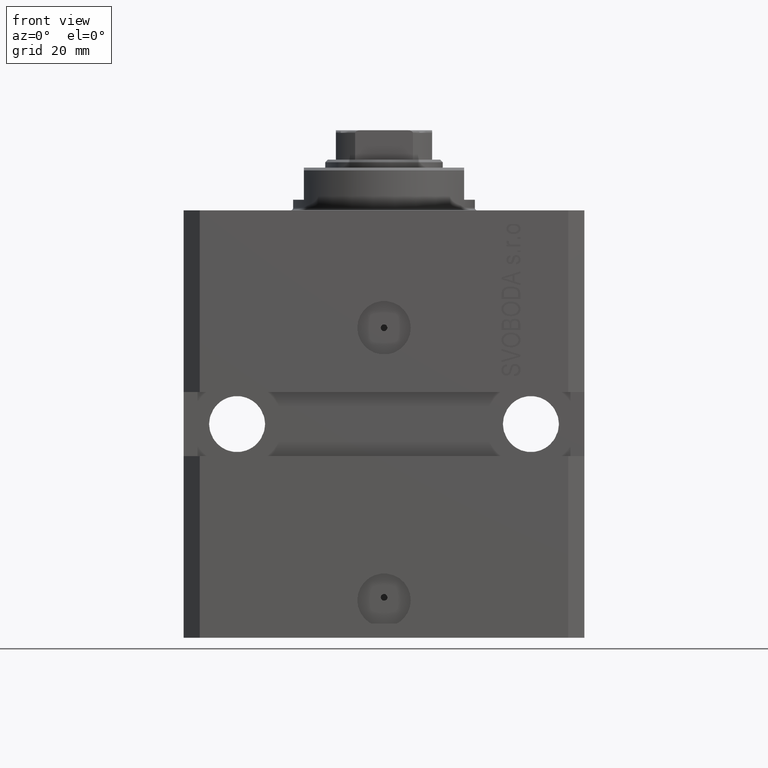
[diagram: clean part render]
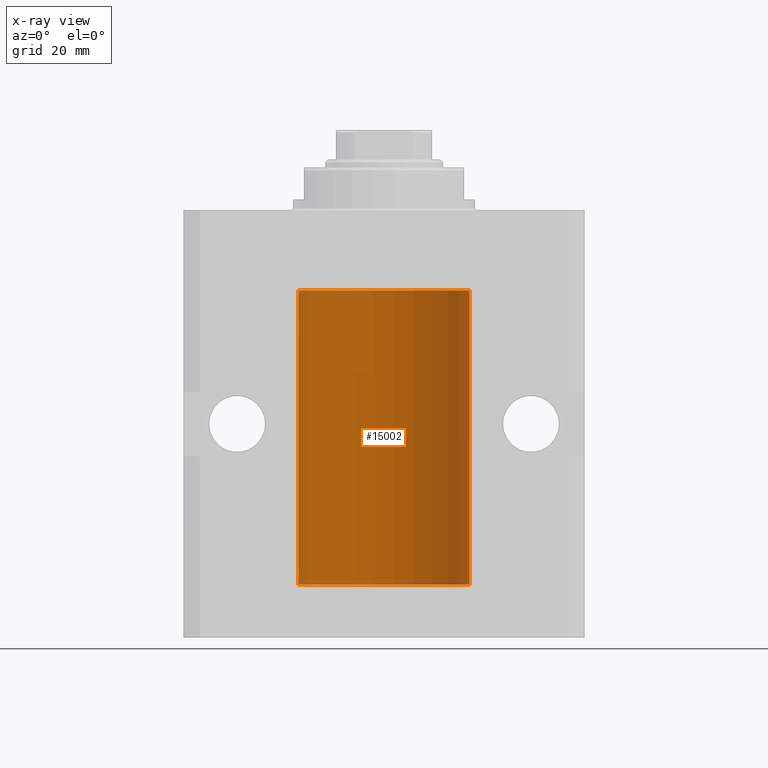
[diagram: x-ray — body ghosted, one internal face saturated and labeled with its STEP entity id]
A machine part, front view, then the same camera in x-ray: the body is ghosted and one INTERNAL B-rep face — a face not visible from any outside direction — is saturated and labeled: STEP entity #15002.
In plain terms, the highlighted cylindrical surface (partial cylindrical patch) has radius 16 mm, axis along (0, 0, 1).
Its self-contained STEP definition (entity closure, byte-faithful):
#33 = CARTESIAN_POINT ( 'NONE',  ( -15.98844267028591126, 0.6088369347963314970, -68.16324735024328163 ) ) ;
#380 = CARTESIAN_POINT ( 'NONE',  ( -16.00000000000000000, 1.643679961284177128E-16, -21.37499999999999645 ) ) ;
#1211 = DIRECTION ( 'NONE',  ( 1.000000000000000000, 0.000000000000000000, 0.000000000000000000 ) ) ;
#1357 = CARTESIAN_POINT ( 'NONE',  ( -15.98844267028591482, 0.6088369347963316081, -22.16324735024328518 ) ) ;
#1673 = FACE_OUTER_BOUND ( 'NONE', #17284, .T. ) ;
#1801 = ORIENTED_EDGE ( 'NONE', *, *, #45359, .F. ) ;
#1817 = VERTEX_POINT ( 'NONE', #28460 ) ;
#2241 = LINE ( 'NONE', #38004, #26222 ) ;
#2482 = CIRCLE ( 'NONE', #21404, 16.00000000000000000 ) ;
#2745 = DIRECTION ( 'NONE',  ( 1.000000000000000000, 0.000000000000000000, 0.000000000000000000 ) ) ;
#3431 = LINE ( 'NONE', #44142, #37317 ) ;
#3798 = ORIENTED_EDGE ( 'NONE', *, *, #4085, .T. ) ;
#3815 = CARTESIAN_POINT ( 'NONE',  ( -16.00000000000013145, 3.685127046438747128E-13, -68.62500000000343903 ) ) ;
#4085 = EDGE_CURVE ( 'NONE', #37453, #32564, #2482, .T. ) ;
#4166 = VECTOR ( 'NONE', #38690, 1000.000000000000000 ) ;
#4696 = LINE ( 'NONE', #40455, #24825 ) ;
#4910 = CARTESIAN_POINT ( 'NONE',  ( -15.98779057735153941, 0.6249419637998100407, -21.83670145863507273 ) ) ;
#5849 = CARTESIAN_POINT ( 'NONE',  ( -16.00000000000000000, 0.1631714642025800244, -22.62499999999985789 ) ) ;
#6247 = LINE ( 'NONE', #31363, #4166 ) ;
#6674 = CARTESIAN_POINT ( 'NONE',  ( -15.99711699979840951, 0.3253759916140645525, -68.55856151623176231 ) ) ;
#6756 = DIRECTION ( 'NONE',  ( 0.000000000000000000, 0.000000000000000000, 1.000000000000000000 ) ) ;
#7459 = CARTESIAN_POINT ( 'NONE',  ( 0.000000000000000000, 0.000000000000000000, -15.00000000000000000 ) ) ;
#8354 = CARTESIAN_POINT ( 'NONE',  ( -16.00000000000013145, 3.685127034031037939E-13, -22.62500000000341771 ) ) ;
#10217 = CARTESIAN_POINT ( 'NONE',  ( -15.98778717651346426, 0.6250289588122136530, -68.08131585687053189 ) ) ;
#10683 = CARTESIAN_POINT ( 'NONE',  ( -15.99934216141748244, 0.1636497843296345067, -67.39126528029308361 ) ) ;
#11185 = CARTESIAN_POINT ( 'NONE',  ( -16.00000000000013145, 3.685127046438747128E-13, -68.62500000000343903 ) ) ;
#12714 = EDGE_CURVE ( 'NONE', #30243, #37453, #6247, .T. ) ;
#13479 = CARTESIAN_POINT ( 'NONE',  ( -16.00000000000000000, 1.959434878635765131E-15, -15.00000000000000000 ) ) ;
#13856 = EDGE_CURVE ( 'NONE', #30243, #44005, #23101, .T. ) ;
#14002 = CARTESIAN_POINT ( 'NONE',  ( -15.99070653155268040, 0.5573233280232966491, -67.67348148680505915 ) ) ;
#14233 = DIRECTION ( 'NONE',  ( 1.000000000000000000, 0.000000000000000000, 0.000000000000000000 ) ) ;
#15002 = ADVANCED_FACE ( 'NONE', ( #1673 ), #40744, .F. ) ;
#15160 = ORIENTED_EDGE ( 'NONE', *, *, #25080, .T. ) ;
#15792 = CARTESIAN_POINT ( 'NONE',  ( -16.00000000000013145, 3.685127034031037939E-13, -22.62500000000341771 ) ) ;
#16025 = CARTESIAN_POINT ( 'NONE',  ( -16.00000000000000000, 1.643679961284177128E-16, -21.37499999999999645 ) ) ;
#16265 = CARTESIAN_POINT ( 'NONE',  ( -15.99934216141748244, 0.1636497843296417787, -21.39126528029306229 ) ) ;
#16683 = DIRECTION ( 'NONE',  ( -0.000000000000000000, -0.000000000000000000, 1.000000000000000000 ) ) ;
#17284 = EDGE_LOOP ( 'NONE', ( #26120, #38028, #33300, #3798, #33630, #22879, #1801, #15160 ) ) ;
#18500 = CARTESIAN_POINT ( 'NONE',  ( -15.98779057735153586, 0.6249419637998054888, -67.83670145863507628 ) ) ;
#18568 = AXIS2_PLACEMENT_3D ( 'NONE', #32701, #33174, #14233 ) ;
#19356 = CARTESIAN_POINT ( 'NONE',  ( -16.00000000000000711, 0.08259886010189904093, -21.37500000000000000 ) ) ;
#21404 = AXIS2_PLACEMENT_3D ( 'NONE', #7459, #6756, #2745 ) ;
#21582 = CARTESIAN_POINT ( 'NONE',  ( -15.99999999999998934, 0.1631714642025807183, -68.62499999999984368 ) ) ;
#21816 = CARTESIAN_POINT ( 'NONE',  ( -15.99548640841682712, 0.3843705577988820732, -67.50046628527007897 ) ) ;
#22386 = DIRECTION ( 'NONE',  ( -0.000000000000000000, -0.000000000000000000, 1.000000000000000000 ) ) ;
#22879 = ORIENTED_EDGE ( 'NONE', *, *, #28022, .T. ) ;
#23101 = CIRCLE ( 'NONE', #18568, 16.00000000000000000 ) ;
#23848 = CARTESIAN_POINT ( 'NONE',  ( -15.99070653155267685, 0.5573233280232986475, -21.67348148680506625 ) ) ;
#24825 = VECTOR ( 'NONE', #40216, 1000.000000000000000 ) ;
#25080 = EDGE_CURVE ( 'NONE', #1817, #26403, #40359, .T. ) ;
#25365 = CARTESIAN_POINT ( 'NONE',  ( -16.00000000000000000, -9.346608026143465119E-15, -67.37500000000000000 ) ) ;
#26120 = ORIENTED_EDGE ( 'NONE', *, *, #42403, .F. ) ;
#26222 = VECTOR ( 'NONE', #16683, 1000.000000000000000 ) ;
#26403 = VERTEX_POINT ( 'NONE', #11185 ) ;
#26771 = CARTESIAN_POINT ( 'NONE',  ( 0.000000000000000000, 0.000000000000000000, -70.09999999999999432 ) ) ;
#27390 = CARTESIAN_POINT ( 'NONE',  ( -15.99707730059171240, 0.3150375992092407373, -21.45402333202571654 ) ) ;
#27699 = B_SPLINE_CURVE_WITH_KNOTS ( 'NONE', 3,
 ( #16025, #19356, #16265, #27390, #41828, #23848, #4910, #33807, #1357, #30719, #45150, #38294, #5849, #15792 ),
 .UNSPECIFIED., .F., .F.,
 ( 4, 2, 2, 2, 2, 2, 4 ),
 ( 1.597328219370744179E-19, 0.0002442776652680942405, 0.0004885553305361882643, 0.0009771106610723839011, 0.001221388326340481665, 0.001465665991608579430, 0.001954221322144767369 ),
 .UNSPECIFIED. ) ;
#28022 = EDGE_CURVE ( 'NONE', #43526, #28639, #27699, .T. ) ;
#28460 = CARTESIAN_POINT ( 'NONE',  ( -16.00000000000000000, -9.346608026143465119E-15, -67.37500000000000000 ) ) ;
#28639 = VERTEX_POINT ( 'NONE', #8354 ) ;
#28682 = CARTESIAN_POINT ( 'NONE',  ( -16.00000000000000711, 0.08259886010189028405, -67.37500000000001421 ) ) ;
#30243 = VERTEX_POINT ( 'NONE', #44895 ) ;
#30491 = EDGE_CURVE ( 'NONE', #43526, #32564, #3431, .T. ) ;
#30719 = CARTESIAN_POINT ( 'NONE',  ( -15.99070426498503217, 0.5462220647145618058, -22.31460064614143590 ) ) ;
#31363 = CARTESIAN_POINT ( 'NONE',  ( 16.00000000000000000, 0.000000000000000000, -70.09999999999999432 ) ) ;
#32539 = CARTESIAN_POINT ( 'NONE',  ( 16.00000000000000000, 0.000000000000000000, -15.00000000000000000 ) ) ;
#32564 = VERTEX_POINT ( 'NONE', #13479 ) ;
#32701 = CARTESIAN_POINT ( 'NONE',  ( 0.000000000000000000, 0.000000000000000000, -70.09999999999999432 ) ) ;
#32939 = CARTESIAN_POINT ( 'NONE',  ( -16.00000000000000000, 1.959434878635765131E-15, -70.09999999999999432 ) ) ;
#33174 = DIRECTION ( 'NONE',  ( 0.000000000000000000, 0.000000000000000000, 1.000000000000000000 ) ) ;
#33300 = ORIENTED_EDGE ( 'NONE', *, *, #12714, .T. ) ;
#33630 = ORIENTED_EDGE ( 'NONE', *, *, #30491, .F. ) ;
#33807 = CARTESIAN_POINT ( 'NONE',  ( -15.98778717651346071, 0.6250289588122140971, -22.08131585687052478 ) ) ;
#36265 = CARTESIAN_POINT ( 'NONE',  ( -15.99070426498502862, 0.5462220647145645813, -68.31460064614141459 ) ) ;
#37317 = VECTOR ( 'NONE', #22386, 1000.000000000000000 ) ;
#37453 = VERTEX_POINT ( 'NONE', #32539 ) ;
#38004 = CARTESIAN_POINT ( 'NONE',  ( -16.00000000000000000, 1.959434878635765131E-15, -70.09999999999999432 ) ) ;
#38028 = ORIENTED_EDGE ( 'NONE', *, *, #13856, .F. ) ;
#38144 = DIRECTION ( 'NONE',  ( -0.000000000000000000, -0.000000000000000000, 1.000000000000000000 ) ) ;
#38294 = CARTESIAN_POINT ( 'NONE',  ( -15.99711699979842017, 0.3253759916140657737, -22.55856151623175521 ) ) ;
#38690 = DIRECTION ( 'NONE',  ( -0.000000000000000000, -0.000000000000000000, 1.000000000000000000 ) ) ;
#39806 = CARTESIAN_POINT ( 'NONE',  ( -15.99707730059171240, 0.3150375992092334654, -67.45402333202571299 ) ) ;
#40216 = DIRECTION ( 'NONE',  ( -0.000000000000000000, -0.000000000000000000, 1.000000000000000000 ) ) ;
#40359 = B_SPLINE_CURVE_WITH_KNOTS ( 'NONE', 3,
 ( #25365, #28682, #10683, #39806, #21816, #14002, #18500, #10217, #33, #36265, #42893, #6674, #21582, #3815 ),
 .UNSPECIFIED., .F., .F.,
 ( 4, 2, 2, 2, 2, 2, 4 ),
 ( 9.902737362640428303E-19, 0.0002442776652680895785, 0.0004885553305361781812, 0.0009771106610723552782, 0.001221388326340464752, 0.001465665991608574008, 0.001954221322144763465 ),
 .UNSPECIFIED. ) ;
#40455 = CARTESIAN_POINT ( 'NONE',  ( -16.00000000000000000, 1.959434878635765131E-15, -70.09999999999999432 ) ) ;
#40531 = AXIS2_PLACEMENT_3D ( 'NONE', #26771, #38144, #1211 ) ;
#40744 = CYLINDRICAL_SURFACE ( 'NONE', #40531, 16.00000000000000000 ) ;
#41828 = CARTESIAN_POINT ( 'NONE',  ( -15.99548640841683067, 0.3843705577988847377, -21.50046628527008608 ) ) ;
#42403 = EDGE_CURVE ( 'NONE', #44005, #26403, #2241, .T. ) ;
#42893 = CARTESIAN_POINT ( 'NONE',  ( -15.99228023727723702, 0.5003781296993395911, -68.38347829554236057 ) ) ;
#43526 = VERTEX_POINT ( 'NONE', #380 ) ;
#44005 = VERTEX_POINT ( 'NONE', #32939 ) ;
#44142 = CARTESIAN_POINT ( 'NONE',  ( -16.00000000000000000, 1.959434878635765131E-15, -70.09999999999999432 ) ) ;
#44895 = CARTESIAN_POINT ( 'NONE',  ( 16.00000000000000000, 0.000000000000000000, -70.09999999999999432 ) ) ;
#45150 = CARTESIAN_POINT ( 'NONE',  ( -15.99228023727724413, 0.5003781296993413674, -22.38347829554236057 ) ) ;
#45359 = EDGE_CURVE ( 'NONE', #1817, #28639, #4696, .T. ) ;